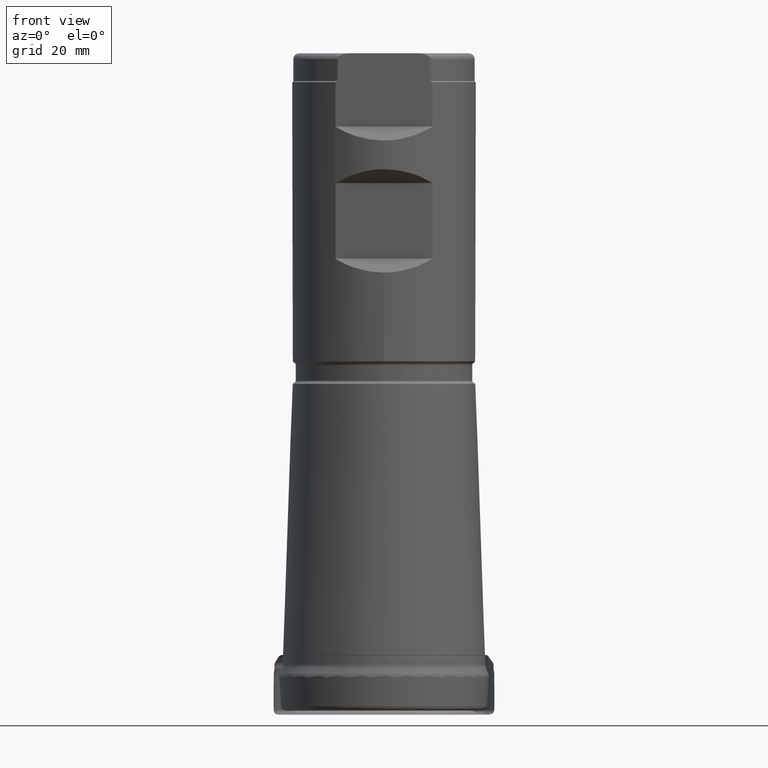
[diagram: clean part render]
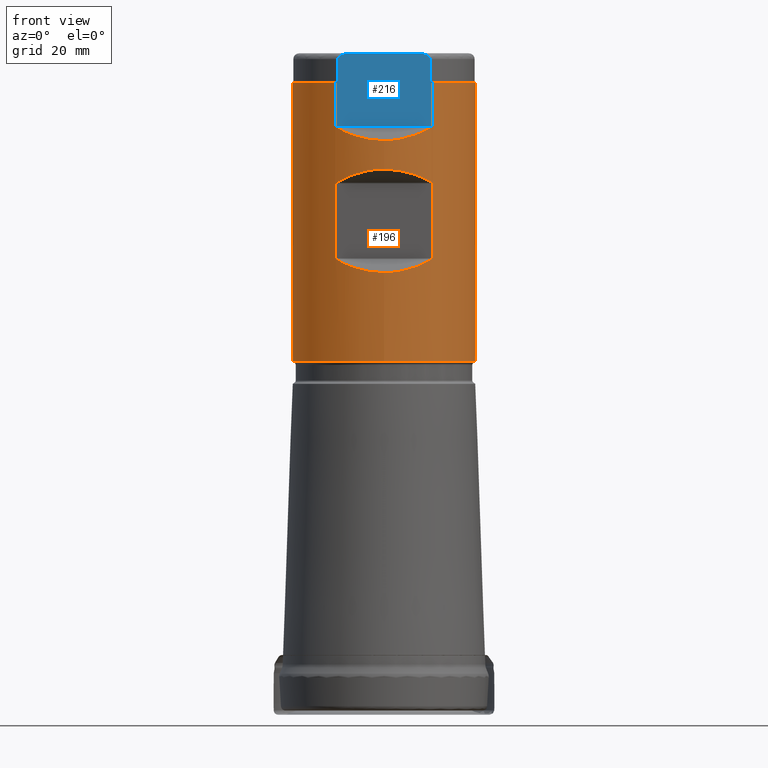
[diagram: same view with the hole feature highlighted: cylindrical wall and planar end face, labeled with their STEP entity ids]
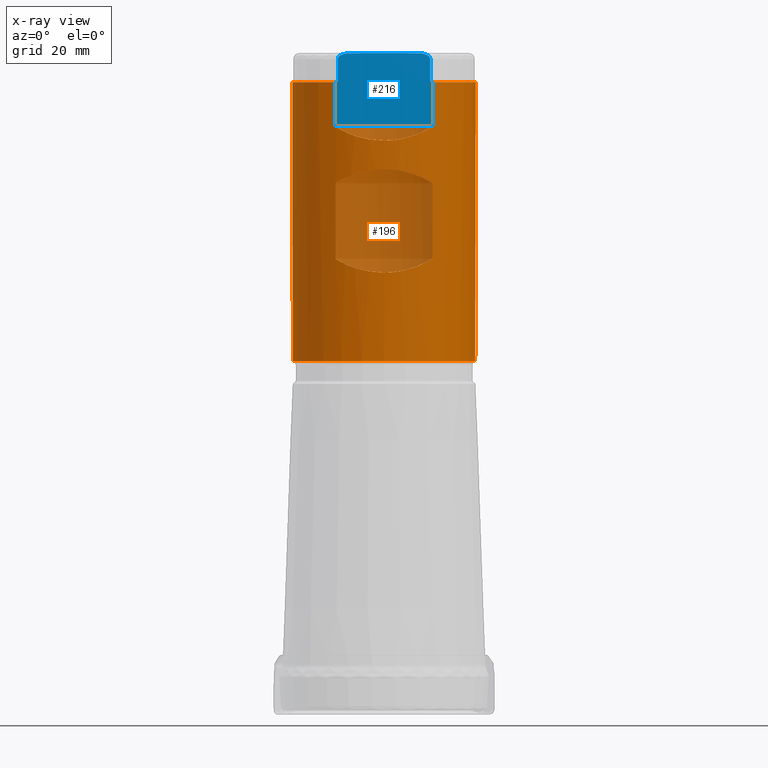
[diagram: x-ray of the same camera — body ghosted, the hole faces saturated]
A machine part, front view. The highlighted faces form one hole feature of diameter 31.75 mm: the cylindrical wall (entity #196, orange) and its adjacent planar end face (entity #216, blue) — they share a circular edge in the B-rep.
The next image is the same camera in x-ray (body ghosted, the hole faces saturated) — the bore reads through the body.
Wall:
#196=ADVANCED_FACE('',(#291,#292,#293),#254,.T.);
#254=CYLINDRICAL_SURFACE('',#894,15.875);
#262=LINE('',#1450,#275);
#263=LINE('',#1482,#276);
#264=LINE('',#1498,#277);
#265=LINE('',#1502,#278);
#275=VECTOR('',#982,1.);
#276=VECTOR('',#985,1.);
#277=VECTOR('',#986,1.);
#278=VECTOR('',#989,1.);
#288=ELLIPSE('',#890,22.4506403026729,15.875);
#289=ELLIPSE('',#891,22.4506403026729,15.875);
#290=ELLIPSE('',#893,22.4506403026729,15.875);
#291=FACE_BOUND('',#386,.T.);
#292=FACE_BOUND('',#387,.T.);
#293=FACE_BOUND('',#388,.T.);
#386=EDGE_LOOP('',(#490));
#387=EDGE_LOOP('',(#491,#492,#493,#494,#495,#496,#497,#498));
#388=EDGE_LOOP('',(#499,#500,#501,#502,#503,#504));
#490=ORIENTED_EDGE('',*,*,#707,.T.);
#491=ORIENTED_EDGE('',*,*,#708,.F.);
#492=ORIENTED_EDGE('',*,*,#709,.T.);
#493=ORIENTED_EDGE('',*,*,#710,.F.);
#494=ORIENTED_EDGE('',*,*,#711,.T.);
#495=ORIENTED_EDGE('',*,*,#712,.F.);
#496=ORIENTED_EDGE('',*,*,#713,.T.);
#497=ORIENTED_EDGE('',*,*,#714,.F.);
#498=ORIENTED_EDGE('',*,*,#715,.T.);
#499=ORIENTED_EDGE('',*,*,#716,.F.);
#500=ORIENTED_EDGE('',*,*,#717,.T.);
#501=ORIENTED_EDGE('',*,*,#718,.F.);
#502=ORIENTED_EDGE('',*,*,#719,.T.);
#503=ORIENTED_EDGE('',*,*,#720,.F.);
#504=ORIENTED_EDGE('',*,*,#721,.T.);
#640=VERTEX_POINT('',#1418);
#641=VERTEX_POINT('',#1432);
#642=VERTEX_POINT('',#1433);
#643=VERTEX_POINT('',#1435);
#644=VERTEX_POINT('',#1449);
#645=VERTEX_POINT('',#1451);
#646=VERTEX_POINT('',#1465);
#647=VERTEX_POINT('',#1467);
#648=VERTEX_POINT('',#1481);
#649=VERTEX_POINT('',#1496);
#650=VERTEX_POINT('',#1497);
#651=VERTEX_POINT('',#1499);
#652=VERTEX_POINT('',#1501);
#653=VERTEX_POINT('',#1503);
#654=VERTEX_POINT('',#1517);
#707=EDGE_CURVE('',#640,#640,#782,.T.);
#708=EDGE_CURVE('',#641,#642,#855,.T.);
#709=EDGE_CURVE('',#641,#643,#288,.T.);
#710=EDGE_CURVE('',#644,#643,#856,.T.);
#711=EDGE_CURVE('',#644,#645,#262,.T.);
#712=EDGE_CURVE('',#646,#645,#857,.T.);
#713=EDGE_CURVE('',#646,#647,#289,.T.);
#714=EDGE_CURVE('',#648,#647,#858,.T.);
#715=EDGE_CURVE('',#648,#642,#263,.T.);
#716=EDGE_CURVE('',#649,#650,#859,.T.);
#717=EDGE_CURVE('',#649,#651,#264,.T.);
#718=EDGE_CURVE('',#652,#651,#783,.T.);
#719=EDGE_CURVE('',#652,#653,#265,.T.);
#720=EDGE_CURVE('',#654,#653,#860,.T.);
#721=EDGE_CURVE('',#654,#650,#290,.T.);
#782=CIRCLE('',#889,15.875);
#783=CIRCLE('',#892,15.875);
#855=B_SPLINE_CURVE_WITH_KNOTS('',3,(#1419,#1420,#1421,#1422,#1423,#1424,
#1425,#1426,#1427,#1428,#1429,#1430,#1431),.UNSPECIFIED.,.F.,.F.,(4,3,3,
3,4),(0.,0.454533174547878,0.702164538890586,0.910432884672803,1.),
 .UNSPECIFIED.);
#856=B_SPLINE_CURVE_WITH_KNOTS('',3,(#1436,#1437,#1438,#1439,#1440,#1441,
#1442,#1443,#1444,#1445,#1446,#1447,#1448),.UNSPECIFIED.,.F.,.F.,(4,3,3,
3,4),(0.,0.199147216076036,0.441583635070393,0.807737111943085,1.),
 .UNSPECIFIED.);
#857=B_SPLINE_CURVE_WITH_KNOTS('',3,(#1452,#1453,#1454,#1455,#1456,#1457,
#1458,#1459,#1460,#1461,#1462,#1463,#1464),.UNSPECIFIED.,.F.,.F.,(4,3,3,
3,4),(0.,0.45453317454789,0.702164538890535,0.910432884672803,1.),
 .UNSPECIFIED.);
#858=B_SPLINE_CURVE_WITH_KNOTS('',3,(#1468,#1469,#1470,#1471,#1472,#1473,
#1474,#1475,#1476,#1477,#1478,#1479,#1480),.UNSPECIFIED.,.F.,.F.,(4,3,3,
3,4),(0.,0.199147216076031,0.441583635070396,0.807737111943104,1.),
 .UNSPECIFIED.);
#859=B_SPLINE_CURVE_WITH_KNOTS('',3,(#1483,#1484,#1485,#1486,#1487,#1488,
#1489,#1490,#1491,#1492,#1493,#1494,#1495),.UNSPECIFIED.,.F.,.F.,(4,3,3,
3,4),(0.,0.199147216076024,0.441583635070381,0.807737111943077,1.),
 .UNSPECIFIED.);
#860=B_SPLINE_CURVE_WITH_KNOTS('',3,(#1504,#1505,#1506,#1507,#1508,#1509,
#1510,#1511,#1512,#1513,#1514,#1515,#1516),.UNSPECIFIED.,.F.,.F.,(4,3,3,
3,4),(0.,0.454533174547871,0.702164538890534,0.910432884672801,1.),
 .UNSPECIFIED.);
#889=AXIS2_PLACEMENT_3D('',#1417,#978,#979);
#890=AXIS2_PLACEMENT_3D('',#1434,#980,#981);
#891=AXIS2_PLACEMENT_3D('',#1466,#983,#984);
#892=AXIS2_PLACEMENT_3D('',#1500,#987,#988);
#893=AXIS2_PLACEMENT_3D('',#1518,#990,#991);
#894=AXIS2_PLACEMENT_3D('',#1519,#992,#993);
#978=DIRECTION('',(0.,1.17145536458252E-15,1.));
#979=DIRECTION('',(0.,-1.,1.31128703695885E-15));
#980=DIRECTION('',(4.32978028117746E-17,0.707106781186548,0.707106781186547));
#981=DIRECTION('',(-4.32978028117746E-17,-0.707106781186547,0.707106781186548));
#982=DIRECTION('',(0.,-1.17145536458252E-15,-1.));
#983=DIRECTION('',(-4.32978028117746E-17,0.707106781186546,-0.707106781186549));
#984=DIRECTION('',(-4.32978028117747E-17,0.707106781186549,0.707106781186546));
#985=DIRECTION('',(0.,1.17145536458252E-15,1.));
#986=DIRECTION('',(0.,1.17145536458252E-15,1.));
#987=DIRECTION('',(0.,1.17145536458252E-15,1.));
#988=DIRECTION('',(0.,-1.,8.74191357972565E-16));
#989=DIRECTION('',(0.,-1.17145536458252E-15,-1.));
#990=DIRECTION('',(-4.32978028117746E-17,0.707106781186547,-0.707106781186548));
#991=DIRECTION('',(-4.32978028117746E-17,0.707106781186548,0.707106781186547));
#992=DIRECTION('',(0.,1.17145536458252E-15,1.));
#993=DIRECTION('',(0.,-1.,1.17145536458252E-15));
#1417=CARTESIAN_POINT('',(0.,7.15075191289347E-14,61.04160797831));
#1418=CARTESIAN_POINT('',(0.,-15.8749999999999,61.04160797831));
#1419=CARTESIAN_POINT('',(-8.22968557485392,-13.5752679656439,91.9691929656441));
#1420=CARTESIAN_POINT('',(-8.26214403842775,-13.5555907887269,91.9495157887271));
#1421=CARTESIAN_POINT('',(-8.29324127122085,-13.5365680579467,91.9251620734196));
#1422=CARTESIAN_POINT('',(-8.31880056112413,-13.5208425116277,91.8947094161788));
#1423=CARTESIAN_POINT('',(-8.3328104906159,-13.5122227966049,91.8780172630558));
#1424=CARTESIAN_POINT('',(-8.34532550776586,-13.5044914646337,91.8591557895354));
#1425=CARTESIAN_POINT('',(-8.35473859034975,-13.4986654187337,91.8385001207552));
#1426=CARTESIAN_POINT('',(-8.36264707757227,-13.4937706131111,91.8211460721568));
#1427=CARTESIAN_POINT('',(-8.36846404353176,-13.4901610267413,91.8021104321875));
#1428=CARTESIAN_POINT('',(-8.3711476120283,-13.4884955668759,91.7826761583768));
#1429=CARTESIAN_POINT('',(-8.37231518540505,-13.4877709546286,91.7742206482129));
#1430=CARTESIAN_POINT('',(-8.37291264972948,-13.4873999999999,91.7656273741106));
#1431=CARTESIAN_POINT('',(-8.37291264972948,-13.4873999999999,91.7570609312881));
#1432=CARTESIAN_POINT('',(-8.22968557485392,-13.5752679656439,91.9691929656441));
#1433=CARTESIAN_POINT('',(-8.37291264972948,-13.4873999999999,91.7570609312881));
#1434=CARTESIAN_POINT('',(0.,9.18349839919301E-14,78.393925));
#1435=CARTESIAN_POINT('',(8.22968557485392,-13.5752679656439,91.9691929656441));
#1436=CARTESIAN_POINT('',(8.37291264972948,-13.4873999999999,91.7570609312881));
#1437=CARTESIAN_POINT('',(8.37291264972948,-13.4873999999999,91.7758810640483));
#1438=CARTESIAN_POINT('',(8.36992693774142,-13.4892545485356,91.7949348590062));
#1439=CARTESIAN_POINT('',(8.36453687582309,-13.492596038309,91.8126543137304));
#1440=CARTESIAN_POINT('',(8.35798061989726,-13.4966604929405,91.8342075503719));
#1441=CARTESIAN_POINT('',(8.34778398154639,-13.5029748527276,91.8544255845527));
#1442=CARTESIAN_POINT('',(8.33568000754057,-13.510442768906,91.8723635424677));
#1443=CARTESIAN_POINT('',(8.31744673800202,-13.5216923410307,91.8993850497411));
#1444=CARTESIAN_POINT('',(8.29449252987562,-13.5357984747801,91.9222491650187));
#1445=CARTESIAN_POINT('',(8.27002445290936,-13.5507313658075,91.9414191629717));
#1446=CARTESIAN_POINT('',(8.25706862585493,-13.558638319584,91.9515696614541));
#1447=CARTESIAN_POINT('',(8.24354784478492,-13.5668642919063,91.9607892919107));
#1448=CARTESIAN_POINT('',(8.22968557485579,-13.5752679656429,91.9691929656473));
#1449=CARTESIAN_POINT('',(8.37291264972948,-13.4873999999999,91.7570609312881));
#1450=CARTESIAN_POINT('',(8.37291264972948,-13.4874,1.57998870842703E-14));
#1451=CARTESIAN_POINT('',(8.37291264972948,-13.4873999999999,78.8991890687119));
#1452=CARTESIAN_POINT('',(8.22968557485392,-13.5752679656439,78.687057034356));
#1453=CARTESIAN_POINT('',(8.26214403842775,-13.555590788727,78.706734211273));
#1454=CARTESIAN_POINT('',(8.29324127122085,-13.5365680579467,78.7310879265805));
#1455=CARTESIAN_POINT('',(8.31880056112413,-13.5208425116277,78.7615405838213));
#1456=CARTESIAN_POINT('',(8.33281049061589,-13.5122227966049,78.7782327369442));
#1457=CARTESIAN_POINT('',(8.34532550776585,-13.5044914646337,78.7970942104647));
#1458=CARTESIAN_POINT('',(8.35473859034974,-13.4986654187337,78.8177498792449));
#1459=CARTESIAN_POINT('',(8.36264707757227,-13.4937706131111,78.8351039278433));
#1460=CARTESIAN_POINT('',(8.36846404353175,-13.4901610267413,78.8541395678126));
#1461=CARTESIAN_POINT('',(8.37114761202829,-13.4884955668759,78.8735738416233));
#1462=CARTESIAN_POINT('',(8.37231518540505,-13.4877709546286,78.8820293517871));
#1463=CARTESIAN_POINT('',(8.37291264972948,-13.4873999999999,78.8906226258895));
#1464=CARTESIAN_POINT('',(8.37291264972948,-13.4873999999999,78.8991890687119));
#1465=CARTESIAN_POINT('',(8.22968557485392,-13.5752679656439,78.687057034356));
#1466=CARTESIAN_POINT('',(0.,1.08081195570106E-13,92.262325));
#1467=CARTESIAN_POINT('',(-8.22968557485392,-13.5752679656439,78.687057034356));
#1468=CARTESIAN_POINT('',(-8.37291264972948,-13.4873999999999,78.8991890687119));
#1469=CARTESIAN_POINT('',(-8.37291264972948,-13.4873999999999,78.8803689359517));
#1470=CARTESIAN_POINT('',(-8.36992693774142,-13.4892545485356,78.8613151409939));
#1471=CARTESIAN_POINT('',(-8.3645368758231,-13.492596038309,78.8435956862697));
#1472=CARTESIAN_POINT('',(-8.35798061989727,-13.4966604929405,78.8220424496282));
#1473=CARTESIAN_POINT('',(-8.34778398154639,-13.5029748527276,78.8018244154474));
#1474=CARTESIAN_POINT('',(-8.33568000754057,-13.510442768906,78.7838864575324));
#1475=CARTESIAN_POINT('',(-8.31744673800202,-13.5216923410307,78.756864950259));
#1476=CARTESIAN_POINT('',(-8.29449252987562,-13.5357984747801,78.7340008349814));
#1477=CARTESIAN_POINT('',(-8.27002445290936,-13.5507313658075,78.7148308370284));
#1478=CARTESIAN_POINT('',(-8.25706862585492,-13.558638319584,78.704680338546));
#1479=CARTESIAN_POINT('',(-8.24354784478492,-13.5668642919063,78.6954607080893));
#1480=CARTESIAN_POINT('',(-8.22968557485579,-13.5752679656429,78.6870570343528));
#1481=CARTESIAN_POINT('',(-8.37291264972948,-13.4873999999999,78.8991890687119));
#1482=CARTESIAN_POINT('',(-8.37291264972948,-13.4874,1.57998870842703E-14));
#1483=CARTESIAN_POINT('',(-8.37291264972948,-13.4873999999999,101.724264068712));
#1484=CARTESIAN_POINT('',(-8.37291264972948,-13.4873999999999,101.705443935952));
#1485=CARTESIAN_POINT('',(-8.36992693774142,-13.4892545485356,101.686390140994));
#1486=CARTESIAN_POINT('',(-8.3645368758231,-13.492596038309,101.66867068627));
#1487=CARTESIAN_POINT('',(-8.35798061989727,-13.4966604929405,101.647117449628));
#1488=CARTESIAN_POINT('',(-8.34778398154639,-13.5029748527276,101.626899415447));
#1489=CARTESIAN_POINT('',(-8.33568000754057,-13.510442768906,101.608961457532));
#1490=CARTESIAN_POINT('',(-8.31744673800202,-13.5216923410307,101.581939950259));
#1491=CARTESIAN_POINT('',(-8.29449252987562,-13.5357984747801,101.559075834981));
#1492=CARTESIAN_POINT('',(-8.27002445290936,-13.5507313658074,101.539905837028));
#1493=CARTESIAN_POINT('',(-8.25706862585492,-13.558638319584,101.529755338546));
#1494=CARTESIAN_POINT('',(-8.24354784478491,-13.5668642919063,101.520535708089));
#1495=CARTESIAN_POINT('',(-8.22968557485578,-13.5752679656429,101.512132034353));
#1496=CARTESIAN_POINT('',(-8.37291264972948,-13.4873999999999,101.724264068712));
#1497=CARTESIAN_POINT('',(-8.22968557485392,-13.5752679656439,101.512132034356));
#1498=CARTESIAN_POINT('',(-8.37291264972948,-13.4874,1.57998870842703E-14));
#1499=CARTESIAN_POINT('',(-8.37291264972947,-13.4873999999999,109.3));
#1500=CARTESIAN_POINT('',(0.,1.2804007134887E-13,109.3));
#1501=CARTESIAN_POINT('',(8.37291264972947,-13.4873999999999,109.3));
#1502=CARTESIAN_POINT('',(8.37291264972948,-13.4874,1.57998870842703E-14));
#1503=CARTESIAN_POINT('',(8.37291264972948,-13.4873999999999,101.724264068712));
#1504=CARTESIAN_POINT('',(8.22968557485392,-13.5752679656439,101.512132034356));
#1505=CARTESIAN_POINT('',(8.26214403842774,-13.5555907887269,101.531809211273));
#1506=CARTESIAN_POINT('',(8.29324127122085,-13.5365680579467,101.55616292658));
#1507=CARTESIAN_POINT('',(8.31880056112412,-13.5208425116277,101.586615583821));
#1508=CARTESIAN_POINT('',(8.33281049061589,-13.5122227966049,101.603307736944));
#1509=CARTESIAN_POINT('',(8.34532550776585,-13.5044914646337,101.622169210465));
#1510=CARTESIAN_POINT('',(8.35473859034974,-13.4986654187337,101.642824879245));
#1511=CARTESIAN_POINT('',(8.36264707757227,-13.4937706131111,101.660178927843));
#1512=CARTESIAN_POINT('',(8.36846404353175,-13.4901610267413,101.679214567813));
#1513=CARTESIAN_POINT('',(8.37114761202829,-13.4884955668759,101.698648841623));
#1514=CARTESIAN_POINT('',(8.37231518540504,-13.4877709546286,101.707104351787));
#1515=CARTESIAN_POINT('',(8.37291264972948,-13.4873999999999,101.71569762589));
#1516=CARTESIAN_POINT('',(8.37291264972948,-13.4873999999999,101.724264068712));
#1517=CARTESIAN_POINT('',(8.22968557485392,-13.5752679656439,101.512132034356));
#1518=CARTESIAN_POINT('',(0.,1.34819752125855E-13,115.0874));
#1519=CARTESIAN_POINT('',(0.,0.,0.));
End face:
#180=PLANE('',#934);
#188=FACE_OUTER_BOUND('',#423,.T.);
#216=ADVANCED_FACE('',(#188),#180,.T.);
#264=LINE('',#1498,#277);
#265=LINE('',#1502,#278);
#266=LINE('',#1523,#279);
#267=LINE('',#1527,#280);
#268=LINE('',#1534,#281);
#269=LINE('',#1610,#282);
#277=VECTOR('',#986,1.);
#278=VECTOR('',#989,1.);
#279=VECTOR('',#996,1.);
#280=VECTOR('',#999,1.);
#281=VECTOR('',#1006,1.);
#282=VECTOR('',#1075,1.);
#423=EDGE_LOOP('',(#549,#550,#551,#552,#553,#554,#555,#556,#557,#558));
#549=ORIENTED_EDGE('',*,*,#749,.T.);
#550=ORIENTED_EDGE('',*,*,#719,.F.);
#551=ORIENTED_EDGE('',*,*,#729,.T.);
#552=ORIENTED_EDGE('',*,*,#723,.F.);
#553=ORIENTED_EDGE('',*,*,#732,.F.);
#554=ORIENTED_EDGE('',*,*,#728,.F.);
#555=ORIENTED_EDGE('',*,*,#731,.F.);
#556=ORIENTED_EDGE('',*,*,#725,.F.);
#557=ORIENTED_EDGE('',*,*,#730,.T.);
#558=ORIENTED_EDGE('',*,*,#717,.F.);
#649=VERTEX_POINT('',#1496);
#651=VERTEX_POINT('',#1499);
#652=VERTEX_POINT('',#1501);
#653=VERTEX_POINT('',#1503);
#655=VERTEX_POINT('',#1521);
#656=VERTEX_POINT('',#1522);
#657=VERTEX_POINT('',#1524);
#658=VERTEX_POINT('',#1526);
#660=VERTEX_POINT('',#1532);
#661=VERTEX_POINT('',#1533);
#717=EDGE_CURVE('',#649,#651,#264,.T.);
#719=EDGE_CURVE('',#652,#653,#265,.T.);
#723=EDGE_CURVE('',#656,#657,#266,.T.);
#725=EDGE_CURVE('',#658,#655,#267,.T.);
#728=EDGE_CURVE('',#661,#660,#268,.T.);
#729=EDGE_CURVE('',#652,#657,#861,.T.);
#730=EDGE_CURVE('',#658,#651,#862,.T.);
#731=EDGE_CURVE('',#655,#661,#863,.T.);
#732=EDGE_CURVE('',#660,#656,#864,.T.);
#749=EDGE_CURVE('',#649,#653,#269,.T.);
#861=B_SPLINE_CURVE_WITH_KNOTS('',3,(#1536,#1537,#1538,#1539),
 .UNSPECIFIED.,.F.,.F.,(4,4),(0.,1.),.UNSPECIFIED.);
#862=B_SPLINE_CURVE_WITH_KNOTS('',3,(#1540,#1541,#1542,#1543),
 .UNSPECIFIED.,.F.,.F.,(4,4),(0.,1.),.UNSPECIFIED.);
#863=B_SPLINE_CURVE_WITH_KNOTS('',3,(#1545,#1546,#1547,#1548,#1549,#1550,
#1551,#1552),.UNSPECIFIED.,.F.,.F.,(4,2,2,4),(0.,0.249999999999998,0.499999999999997,
1.),.UNSPECIFIED.);
#864=B_SPLINE_CURVE_WITH_KNOTS('',3,(#1553,#1554,#1555,#1556,#1557,#1558,
#1559,#1560),.UNSPECIFIED.,.F.,.F.,(4,2,2,4),(0.,0.500000000000002,0.750000000000001,
1.),.UNSPECIFIED.);
#934=AXIS2_PLACEMENT_3D('',#1611,#1076,#1077);
#986=DIRECTION('',(0.,1.17145536458252E-15,1.));
#989=DIRECTION('',(0.,-1.17145536458252E-15,-1.));
#996=DIRECTION('',(0.,-1.17145536458252E-15,-1.));
#999=DIRECTION('',(0.,1.17145536458252E-15,1.));
#1006=DIRECTION('',(1.,-7.17309531289991E-32,-6.12323399573676E-17));
#1075=DIRECTION('',(1.,-7.17309531289991E-32,-6.12323399573676E-17));
#1076=DIRECTION('',(2.05927208001509E-49,-1.,1.17145536458252E-15));
#1077=DIRECTION('',(6.24500451351651E-17,1.17093834628434E-15,1.));
#1496=CARTESIAN_POINT('',(-8.37291264972948,-13.4873999999999,101.724264068712));
#1498=CARTESIAN_POINT('',(-8.37291264972948,-13.4874,1.57998870842703E-14));
#1499=CARTESIAN_POINT('',(-8.37291264972947,-13.4873999999999,109.3));
#1501=CARTESIAN_POINT('',(8.37291264972947,-13.4873999999999,109.3));
#1502=CARTESIAN_POINT('',(8.37291264972948,-13.4874,1.57998870842703E-14));
#1503=CARTESIAN_POINT('',(8.37291264972948,-13.4873999999999,101.724264068712));
#1521=CARTESIAN_POINT('',(-7.98721893028869,-13.4873999999999,113.299999999989));
#1522=CARTESIAN_POINT('',(7.98721893026602,-13.4873999999999,113.3));
#1523=CARTESIAN_POINT('',(7.98721893026602,-13.4874,1.57998870842703E-14));
#1524=CARTESIAN_POINT('',(7.98721893026602,-13.4873999999999,109.5));
#1526=CARTESIAN_POINT('',(-7.98721893026602,-13.4873999999999,109.5));
#1527=CARTESIAN_POINT('',(-7.98721893026602,-13.4874,1.57998870842703E-14));
#1532=CARTESIAN_POINT('',(5.78322282468843,-13.4873999999999,114.3));
#1533=CARTESIAN_POINT('',(-5.78322282468864,-13.4873999999999,114.3));
#1534=CARTESIAN_POINT('',(-17.5,-13.4873999999999,114.3));
#1536=CARTESIAN_POINT('',(8.37291264972948,-13.4873999999999,109.3));
#1537=CARTESIAN_POINT('',(8.24478103671274,-13.4873999999999,109.3675801451));
#1538=CARTESIAN_POINT('',(8.11622498021636,-13.4873999999999,109.434264780588));
#1539=CARTESIAN_POINT('',(7.98721893026603,-13.4873999999999,109.5));
#1540=CARTESIAN_POINT('',(-7.98721893026603,-13.4873999999999,109.5));
#1541=CARTESIAN_POINT('',(-8.1163023507283,-13.4873999999999,109.434225356332));
#1542=CARTESIAN_POINT('',(-8.24485631090742,-13.4873999999999,109.367540443414));
#1543=CARTESIAN_POINT('',(-8.37291264972949,-13.4873999999999,109.3));
#1545=CARTESIAN_POINT('',(-7.98721893026687,-13.4873999999999,113.299999999988));
#1546=CARTESIAN_POINT('',(-7.98721893027206,-13.4873999999999,113.52020277002));
#1547=CARTESIAN_POINT('',(-7.83736774434978,-13.4873999999999,113.715154682752));
#1548=CARTESIAN_POINT('',(-7.48623082979295,-13.4873999999999,113.980139720299));
#1549=CARTESIAN_POINT('',(-7.2817203242156,-13.4873999999999,114.067554950671));
#1550=CARTESIAN_POINT('',(-6.65729293981297,-13.4873999999999,114.2609297127));
#1551=CARTESIAN_POINT('',(-6.21637245039726,-13.4873999999999,114.3));
#1552=CARTESIAN_POINT('',(-5.78322282468865,-13.4873999999999,114.3));
#1553=CARTESIAN_POINT('',(5.78322282468843,-13.4873999999999,114.3));
#1554=CARTESIAN_POINT('',(6.21394869343175,-13.4873999999999,114.3));
#1555=CARTESIAN_POINT('',(6.65580566004196,-13.4873999999999,114.261664403719));
#1556=CARTESIAN_POINT('',(7.28486381477455,-13.4873999999999,114.06644362587));
#1557=CARTESIAN_POINT('',(7.48748729423048,-13.4873999999999,113.979507582041));
#1558=CARTESIAN_POINT('',(7.83842269980534,-13.4873999999999,113.714040424023));
#1559=CARTESIAN_POINT('',(7.98721893026601,-13.4873999999999,113.522383261353));
#1560=CARTESIAN_POINT('',(7.98721893026602,-13.4873999999999,113.3));
#1610=CARTESIAN_POINT('',(-17.5,-13.4873999999999,101.724264068712));
#1611=CARTESIAN_POINT('',(-17.5,-13.4873999999999,114.3));